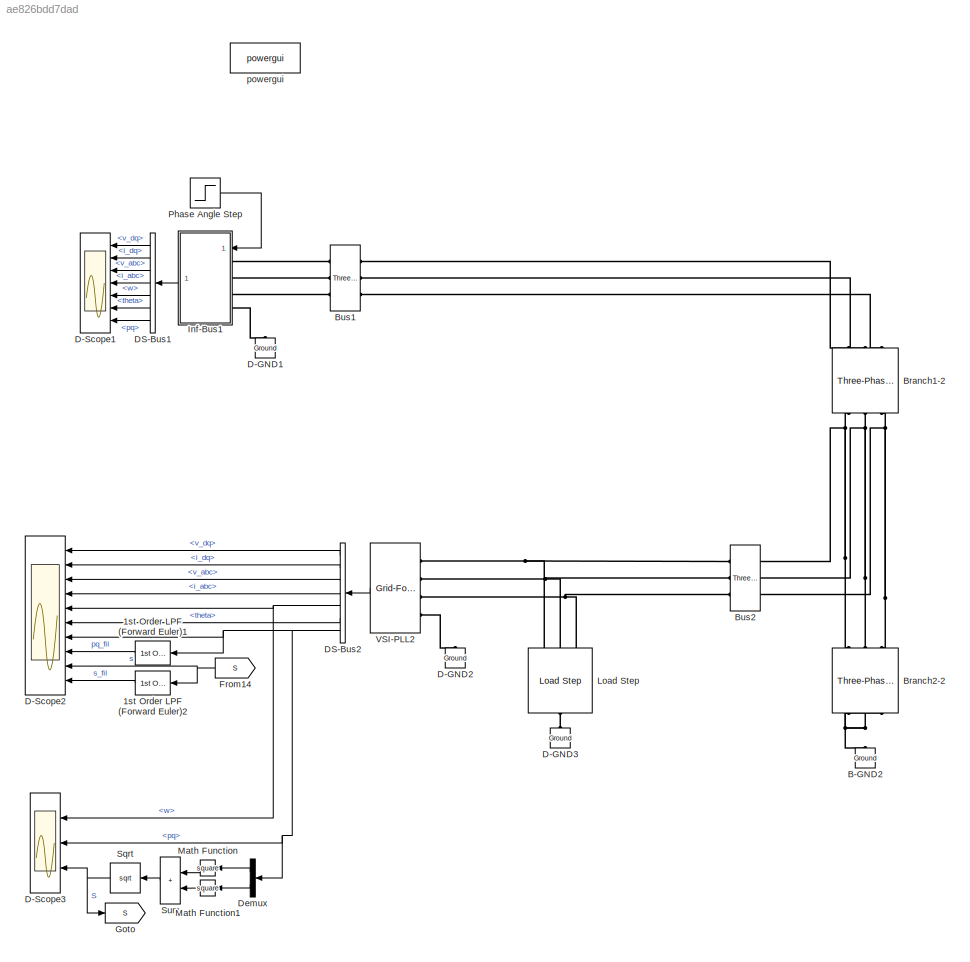
MODEL slx_ae826bdd7dad
KIND model
CONFIG AbsTol = auto
CONFIG EnableMultiTasking = off
CONFIG FixedStep = Ts
CONFIG MaxStep = auto
CONFIG MinStep = auto
CONFIG RelTol = 1e-3
CONFIG SampleTimeConstraint = Unconstrained
CONFIG SolverName = FixedStepAuto
CONFIG StartTime = 0
CONFIG StopTime = 4
BLOCK [Reference] 1st Order LPF (Forward Euler)1  REF=SimplexPS/1st Order LPF
(Forward Euler)
  NameLocation = top
  Ports = [1, 1]
  SourceBlock = SimplexPS/1st Order LPF\n(Forward Euler)
  SourceProductName = Simplex Power Systems
BLOCK [Reference] 1st Order LPF (Forward Euler)2  REF=SimplexPS/1st Order LPF
(Forward Euler)
  NameLocation = top
  Ports = [1, 1]
  SourceBlock = SimplexPS/1st Order LPF\n(Forward Euler)
  SourceProductName = Simplex Power Systems
BLOCK [Reference] B-GND2  REF=powerlib/Elements/Ground
  NameLocation = right
  Ports = [0, 0, 0, 0, 0, 1]
  SourceBlock = powerlib/Elements/Ground
  SourceProductBaseCode = PS
  SourceType = Ground
BLOCK [Reference] Branch1-2  REF=powerlib/Elements/Three-Phase
Series RLC Branch
  AttributesFormatString = \n
  NameLocation = right
  Ports = [0, 0, 0, 0, 0, 3, 3]
  SourceBlock = powerlib/Elements/Three-Phase\nSeries RLC Branch
  SourceProductBaseCode = PS
  SourceType = Three-Phase Series RLC Branch
BLOCK [Reference] Branch2-2  REF=powerlib/Elements/Three-Phase
Parallel RLC Branch
  AttributesFormatString = \n
  NameLocation = right
  Ports = [0, 0, 0, 0, 0, 3, 3]
  SourceBlock = powerlib/Elements/Three-Phase\nParallel RLC Branch
  SourceProductBaseCode = PS
  SourceType = Three-Phase Parallel RLC Branch
BLOCK [Reference] Bus1  REF=SimplexPS/Three-Phase Bus
  Ports = [0, 0, 0, 0, 0, 3, 3]
  SourceBlock = SimplexPS/Three-Phase Bus
  SourceProductName = Simplex Power Systems
BLOCK [Reference] Bus2  REF=SimplexPS/Three-Phase Bus
  Ports = [0, 0, 0, 0, 0, 3, 3]
  SourceBlock = SimplexPS/Three-Phase Bus
  SourceProductName = Simplex Power Systems
BLOCK [Reference] D-GND1  REF=powerlib/Elements/Ground
  NameLocation = right
  Ports = [0, 0, 0, 0, 0, 1]
  SourceBlock = powerlib/Elements/Ground
  SourceProductBaseCode = PS
  SourceType = Ground
BLOCK [Reference] D-GND2  REF=powerlib/Elements/Ground
  NameLocation = right
  Ports = [0, 0, 0, 0, 0, 1]
  SourceBlock = powerlib/Elements/Ground
  SourceProductBaseCode = PS
  SourceType = Ground
BLOCK [Reference] D-GND3  REF=powerlib/Elements/Ground
  Commented = on
  NameLocation = right
  Ports = [0, 0, 0, 0, 0, 1]
  SourceBlock = powerlib/Elements/Ground
  SourceProductBaseCode = PS
  SourceType = Ground
BLOCK [Scope] D-Scope1
  Floating = off
  NumInputPorts = 7
  Ports = [7]
  ScopeSpecificationString = Simulink.scopes.TimeScopeBlockCfg('CurrentConfiguration', extmgr.ConfigurationSet(extmgr.Configuration('Core','General UI',true),extmgr.Configuration('Core','Source UI',true),extmgr.Configuration('Sources','WiredSimulink',true),extmgr.Configuration('Visuals','Time Domain',true,'SerializedDisplays',{struct('MinYLimReal','-0.125','MaxYLimReal','1.125','YLabelReal','','MinYLimMag','0.00000','MaxYLimM...<+5607ch>
BLOCK [Scope] D-Scope2
  Floating = off
  NumInputPorts = 10
  Ports = [10]
  ScopeSpecificationString = Simulink.scopes.TimeScopeBlockCfg('CurrentConfiguration', extmgr.ConfigurationSet(extmgr.Configuration('Core','General UI',true),extmgr.Configuration('Core','Source UI',true),extmgr.Configuration('Sources','WiredSimulink',true,'DataLogging',true,'DataLoggingVariableName','H_SimData_IBR','DataLoggingSaveFormat','StructureWithTime'),extmgr.Configuration('Visuals','Time Domain',true,'SerializedDispla...<+7747ch>
BLOCK [Scope] D-Scope3
  Floating = off
  NumInputPorts = 3
  Ports = [3]
  ScopeSpecificationString = Simulink.scopes.TimeScopeBlockCfg('CurrentConfiguration', extmgr.ConfigurationSet(extmgr.Configuration('Core','General UI',true),extmgr.Configuration('Core','Source UI',true),extmgr.Configuration('Sources','WiredSimulink',true,'DataLoggingVariableName','Case1_Sim_IBR','DataLoggingSaveFormat','StructureWithTime'),extmgr.Configuration('Visuals','Time Domain',true,'SerializedDisplays',{struct('MinYLi...<+2769ch>
BLOCK [BusSelector] DS-Bus1
  OutputSignals = v_dq,i_dq,v_abc,i_abc,w,theta,pq
  Ports = [1, 7]
BLOCK [BusSelector] DS-Bus2
  OutputSignals = v_dq,i_dq,v_abc,i_abc,w,theta,pq
  Ports = [1, 7]
BLOCK [Demux] Demux
  NameLocation = top
  Outputs = 2
  Ports = [1, 2]
BLOCK [From] From14
  GotoTag = S
  NameLocation = top
BLOCK [Goto] Goto
  GotoTag = S
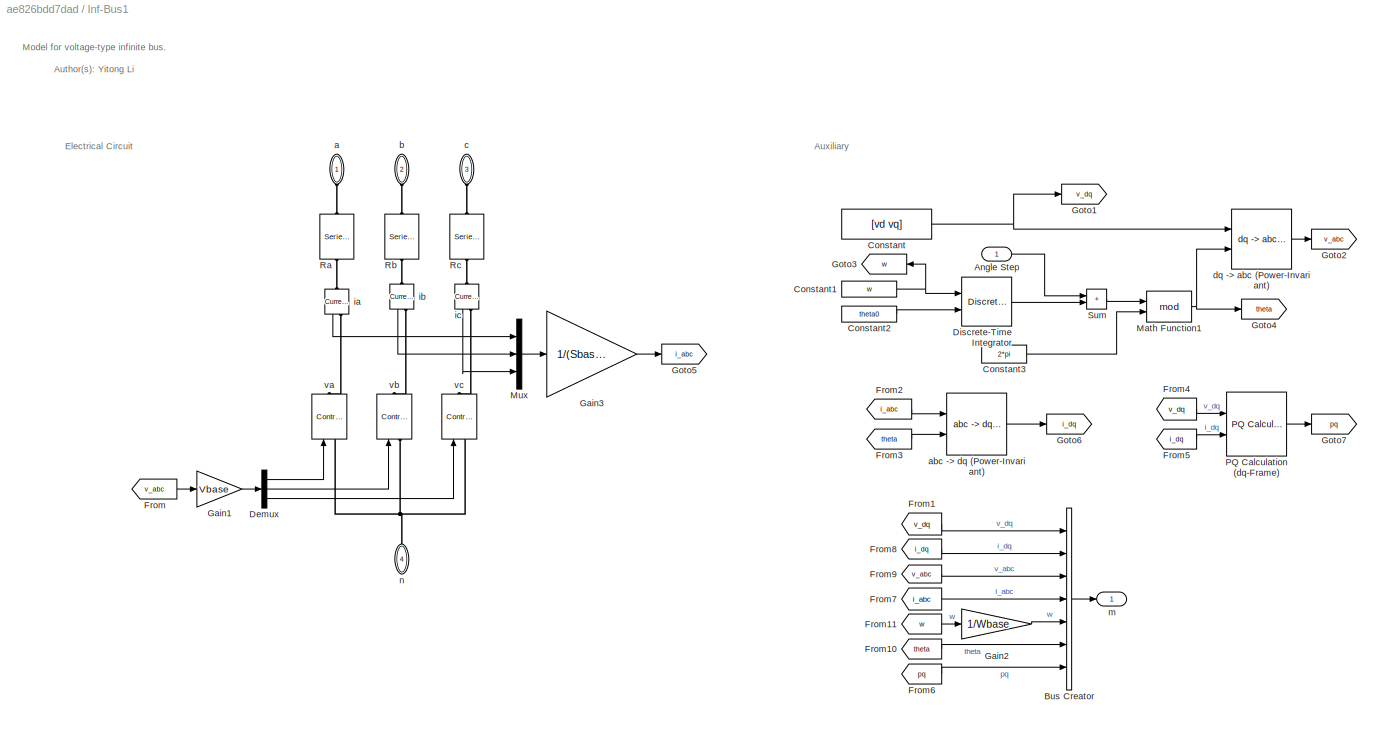
BLOCK [SubSystem] Inf-Bus1
  AncestorBlock = SimplexPS/AC Infinite Bus\n(Voltage Type)
  Ports = [1, 1, 0, 0, 0, 4]
  RequestExecContextInheritance = off
BLOCK [Inport] Inf-Bus1/Angle Step
BLOCK [BusCreator] Inf-Bus1/Bus Creator
  DisplayOption = bar
  InheritFromInputs = on
  Inputs = 7
  Ports = [7, 1]
BLOCK [Constant] Inf-Bus1/Constant
  Value = [vd vq]
BLOCK [Constant] Inf-Bus1/Constant1
  Value = w
BLOCK [Constant] Inf-Bus1/Constant2
  Value = theta0
BLOCK [Constant] Inf-Bus1/Constant3
  NameLocation = top
  Value = 2*pi
BLOCK [Demux] Inf-Bus1/Demux
  Outputs = 3
  Ports = [1, 3]
BLOCK [DiscreteIntegrator] Inf-Bus1/Discrete-Time Integrator
  ICPrevOutput = DiscIntNeverNeededParam
  ICPrevScaledInput = DiscIntNeverNeededParam
  InitialConditionSetting = Auto
  InitialConditionSource = external
  IntegratorMethod = Integration: Trapezoidal
  Ports = [2, 1]
  SampleTime = -1
BLOCK [From] Inf-Bus1/From
  GotoTag = v_abc
BLOCK [From] Inf-Bus1/From1
  GotoTag = v_dq
BLOCK [From] Inf-Bus1/From10
  GotoTag = theta
BLOCK [From] Inf-Bus1/From11
  GotoTag = w
BLOCK [From] Inf-Bus1/From2
  GotoTag = i_abc
BLOCK [From] Inf-Bus1/From3
  GotoTag = theta
BLOCK [From] Inf-Bus1/From4
  GotoTag = v_dq
BLOCK [From] Inf-Bus1/From5
  GotoTag = i_dq
BLOCK [From] Inf-Bus1/From6
  GotoTag = pq
BLOCK [From] Inf-Bus1/From7
  GotoTag = i_abc
BLOCK [From] Inf-Bus1/From8
  GotoTag = i_dq
BLOCK [From] Inf-Bus1/From9
  GotoTag = v_abc
BLOCK [Gain] Inf-Bus1/Gain1
  Gain = Vbase
BLOCK [Gain] Inf-Bus1/Gain2
  Gain = 1/Wbase
BLOCK [Gain] Inf-Bus1/Gain3
  Gain = 1/(Sbase/Vbase)
BLOCK [Goto] Inf-Bus1/Goto1
  GotoTag = v_dq
BLOCK [Goto] Inf-Bus1/Goto2
  GotoTag = v_abc
BLOCK [Goto] Inf-Bus1/Goto3
  GotoTag = w
  NameLocation = top
BLOCK [Goto] Inf-Bus1/Goto4
  GotoTag = theta
BLOCK [Goto] Inf-Bus1/Goto5
  GotoTag = i_abc
BLOCK [Goto] Inf-Bus1/Goto6
  GotoTag = i_dq
BLOCK [Goto] Inf-Bus1/Goto7
  GotoTag = pq
BLOCK [Math] Inf-Bus1/Math Function1
  Operator = mod
  Ports = [2, 1]
  SignedPower = on
BLOCK [Mux] Inf-Bus1/Mux
  DisplayOption = bar
  Inputs = 3
  Ports = [3, 1]
BLOCK [Reference] Inf-Bus1/PQ Calculation (dq-Frame)  REF=SimplexPS/PQ Calculation
(dq-Frame)
  Ports = [2, 1]
  SourceBlock = SimplexPS/PQ Calculation\n(dq-Frame)
  SourceProductName = Simplex Power Systems
BLOCK [Reference] Inf-Bus1/Ra  REF=powerlib/Elements/Series RLC Branch
  NameLocation = left
  Ports = [0, 0, 0, 0, 0, 1, 1]
  SourceBlock = powerlib/Elements/Series RLC Branch
  SourceProductBaseCode = PS
  SourceType = Series RLC Branch
BLOCK [Reference] Inf-Bus1/Rb  REF=powerlib/Elements/Series RLC Branch
  NameLocation = left
  Ports = [0, 0, 0, 0, 0, 1, 1]
  SourceBlock = powerlib/Elements/Series RLC Branch
  SourceProductBaseCode = PS
  SourceType = Series RLC Branch
BLOCK [Reference] Inf-Bus1/Rc  REF=powerlib/Elements/Series RLC Branch
  NameLocation = left
  Ports = [0, 0, 0, 0, 0, 1, 1]
  SourceBlock = powerlib/Elements/Series RLC Branch
  SourceProductBaseCode = PS
  SourceType = Series RLC Branch
BLOCK [Sum] Inf-Bus1/Sum
  IconShape = rectangular
  Ports = [2, 1]
BLOCK [PMIOPort] Inf-Bus1/a
  NameLocation = left
  Side = Left
BLOCK [Reference] Inf-Bus1/abc -> dq (Power-Invariant)  REF=SimplexPS/abc -> dq
(Power-Invariant)
  Ports = [2, 1]
  SourceBlock = SimplexPS/abc -> dq\n(Power-Invariant)
  SourceProductName = Simplex Power Systems
BLOCK [PMIOPort] Inf-Bus1/b
  NameLocation = left
  Port = 2
  Side = Left
BLOCK [PMIOPort] Inf-Bus1/c
  NameLocation = left
  Port = 3
  Side = Left
BLOCK [Reference] Inf-Bus1/dq -> abc (Power-Invariant)  REF=SimplexPS/dq -> abc
(Power-Invariant)
  Ports = [2, 1]
  SourceBlock = SimplexPS/dq -> abc\n(Power-Invariant)
  SourceProductName = Simplex Power Systems
BLOCK [Reference] Inf-Bus1/ia  REF=powerlib/Measurements/Current Measurement
  NameLocation = left
  Ports = [0, 1, 0, 0, 0, 1, 1]
  SourceBlock = powerlib/Measurements/Current Measurement
  SourceProductBaseCode = PS
  SourceType = Current Measurement
  UserDataPersistent = on
BLOCK [Reference] Inf-Bus1/ib  REF=powerlib/Measurements/Current Measurement
  NameLocation = left
  Ports = [0, 1, 0, 0, 0, 1, 1]
  SourceBlock = powerlib/Measurements/Current Measurement
  SourceProductBaseCode = PS
  SourceType = Current Measurement
  UserDataPersistent = on
BLOCK [Reference] Inf-Bus1/ic  REF=powerlib/Measurements/Current Measurement
  NameLocation = left
  Ports = [0, 1, 0, 0, 0, 1, 1]
  SourceBlock = powerlib/Measurements/Current Measurement
  SourceProductBaseCode = PS
  SourceType = Current Measurement
  UserDataPersistent = on
BLOCK [Outport] Inf-Bus1/m
BLOCK [PMIOPort] Inf-Bus1/n
  NameLocation = right
  Port = 4
  Side = Left
BLOCK [Reference] Inf-Bus1/va  REF=powerlib/Electrical
Sources/Controlled Voltage Source
  NameLocation = right
  Ports = [1, 0, 0, 0, 0, 1, 1]
  SourceBlock = powerlib/Electrical\nSources/Controlled Voltage Source
  SourceProductBaseCode = PS
  SourceType = Controlled Voltage Source
BLOCK [Reference] Inf-Bus1/vb  REF=powerlib/Electrical
Sources/Controlled Voltage Source
  NameLocation = right
  Ports = [1, 0, 0, 0, 0, 1, 1]
  SourceBlock = powerlib/Electrical\nSources/Controlled Voltage Source
  SourceProductBaseCode = PS
  SourceType = Controlled Voltage Source
BLOCK [Reference] Inf-Bus1/vc  REF=powerlib/Electrical
Sources/Controlled Voltage Source
  NameLocation = right
  Ports = [1, 0, 0, 0, 0, 1, 1]
  SourceBlock = powerlib/Electrical\nSources/Controlled Voltage Source
  SourceProductBaseCode = PS
  SourceType = Controlled Voltage Source
BLOCK [Reference] Load Step  REF=SimplexPS/Load Step
  Commented = on
  NameLocation = right
  Ports = [0, 0, 0, 0, 0, 3, 1]
  SourceBlock = SimplexPS/Load Step
  SourceProductName = Simplex Power Systems
BLOCK [Math] Math Function
  NameLocation = top
  Operator = square
  Ports = [1, 1]
BLOCK [Math] Math Function1
  NameLocation = top
  Operator = square
  Ports = [1, 1]
BLOCK [Step] Phase Angle Step
  After = 10/180*pi
  SampleTime = 0
  Time = 2
BLOCK [Sqrt] Sqrt
  NameLocation = top
BLOCK [Sum] Sum
  IconShape = rectangular
  NameLocation = top
  Ports = [2, 1]
BLOCK [Reference] VSI-PLL2  REF=SimplexPS/Grid-Following
Voltage-Source Inverter
(dq-Frame System Object)
  Ports = [0, 1, 0, 0, 0, 4]
  SourceBlock = SimplexPS/Grid-Following\nVoltage-Source Inverter\n(dq-Frame System Object)
  SourceProductName = Simplex Power Systems
BLOCK [Reference] powergui  REF=powerlib/powergui
  Ports = []
  Priority = 1
  SourceBlock = powerlib/powergui
  SourceProductBaseCode = PS
  SourceType = PSB option menu block
ANNOTATION Inf-Bus1: Auxiliary
ANNOTATION Inf-Bus1: Electrical Circuit
ANNOTATION Inf-Bus1: Model for voltage-type infinite bus. Author(s): Yitong Li
LINE 1st Order LPF (Forward Euler)1:1 -> D-Scope2:8
LINE 1st Order LPF (Forward Euler)2:1 -> D-Scope2:10
LINE DS-Bus1:1 -> D-Scope1:1
LINE DS-Bus1:2 -> D-Scope1:2
LINE DS-Bus1:3 -> D-Scope1:3
LINE DS-Bus1:4 -> D-Scope1:4
LINE DS-Bus1:5 -> D-Scope1:5
LINE DS-Bus1:6 -> D-Scope1:6
LINE DS-Bus1:7 -> D-Scope1:7
LINE DS-Bus2:1 -> D-Scope2:1
LINE DS-Bus2:2 -> D-Scope2:2
LINE DS-Bus2:3 -> D-Scope2:3
LINE DS-Bus2:4 -> D-Scope2:4
NET DS-Bus2:5 -> D-Scope2:5, D-Scope3:1
LINE DS-Bus2:6 -> D-Scope2:6
NET DS-Bus2:7 -> 1st Order LPF (Forward Euler)1:1, D-Scope2:7, D-Scope3:2, Demux:1
LINE Demux:1 -> Math Function:1
LINE Demux:2 -> Math Function1:1
NET From14:1 -> 1st Order LPF (Forward Euler)2:1, D-Scope2:9
LINE Inf-Bus1:1 -> DS-Bus1:1
LINE Math Function1:1 -> Sum:2
LINE Math Function:1 -> Sum:1
LINE Phase Angle Step:1 -> Inf-Bus1:1
NET Sqrt:1 -> D-Scope3:3, Goto:1
LINE Sum:1 -> Sqrt:1
LINE VSI-PLL2:1 -> DS-Bus2:1
PNET net1: B-GND2:LConn1 -- Branch2-2:RConn1 -- Branch2-2:RConn2 -- Branch2-2:RConn3
PLINE Branch1-2:LConn1 -- Bus1:RConn1
PLINE Branch1-2:LConn2 -- Bus1:RConn2
PLINE Branch1-2:LConn3 -- Bus1:RConn3
PNET net2: Branch1-2:RConn1 -- Branch2-2:LConn1 -- Bus2:RConn1
PNET net3: Branch1-2:RConn2 -- Branch2-2:LConn2 -- Bus2:RConn2
PNET net4: Branch1-2:RConn3 -- Branch2-2:LConn3 -- Bus2:RConn3
PLINE Bus1:LConn1 -- Inf-Bus1:LConn1
PLINE Bus1:LConn2 -- Inf-Bus1:LConn2
PLINE Bus1:LConn3 -- Inf-Bus1:LConn3
PNET net5: Bus2:LConn1 -- Load Step:LConn1 -- VSI-PLL2:LConn1
PNET net6: Bus2:LConn2 -- Load Step:LConn2 -- VSI-PLL2:LConn2
PNET net7: Bus2:LConn3 -- Load Step:LConn3 -- VSI-PLL2:LConn3
PLINE D-GND1:LConn1 -- Inf-Bus1:LConn4
PLINE D-GND2:LConn1 -- VSI-PLL2:LConn4
PLINE D-GND3:LConn1 -- Load Step:RConn1
note: NET lines group one-source signal fan-out (src -> all destinations, sorted); 1:1 wires keep LINE; PNET lines group multi-terminal physical nets as a canonical sorted terminal list (undirected conserving connections); 2-terminal nets keep the pairwise PLINE form
